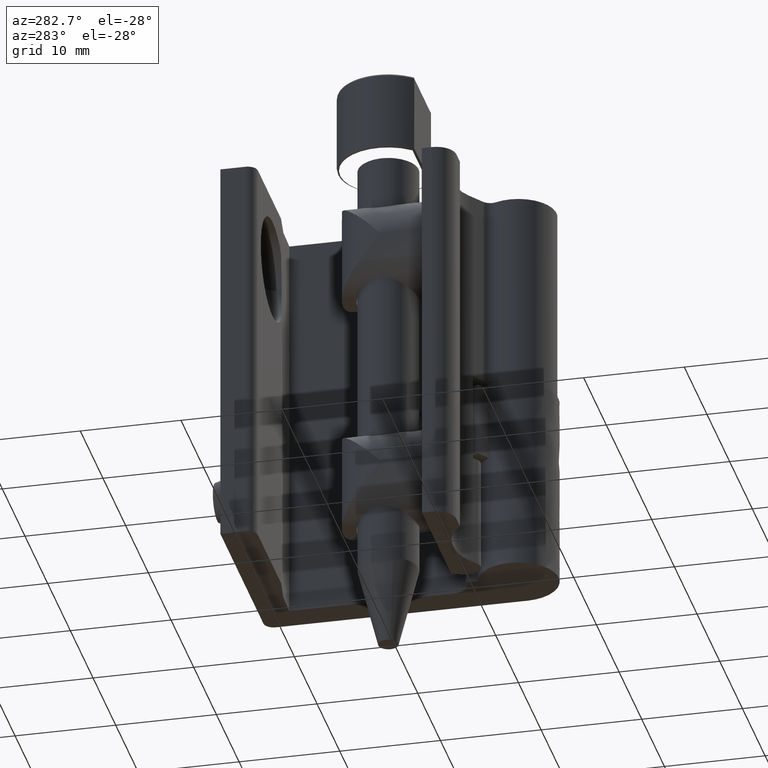
[diagram: clean part render]
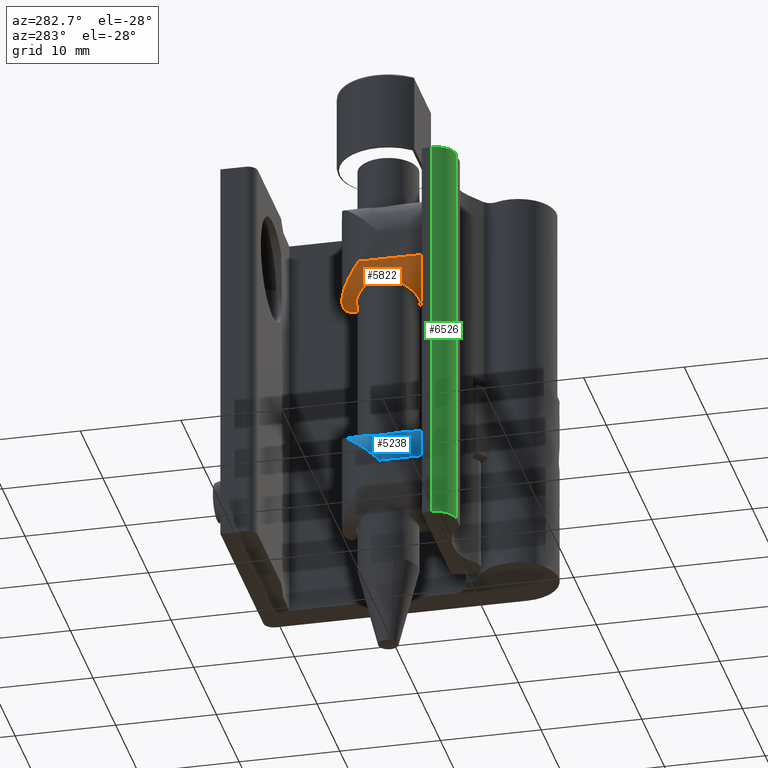
[diagram: same view with three faces highlighted in distinct colors, each labeled with its STEP entity id]
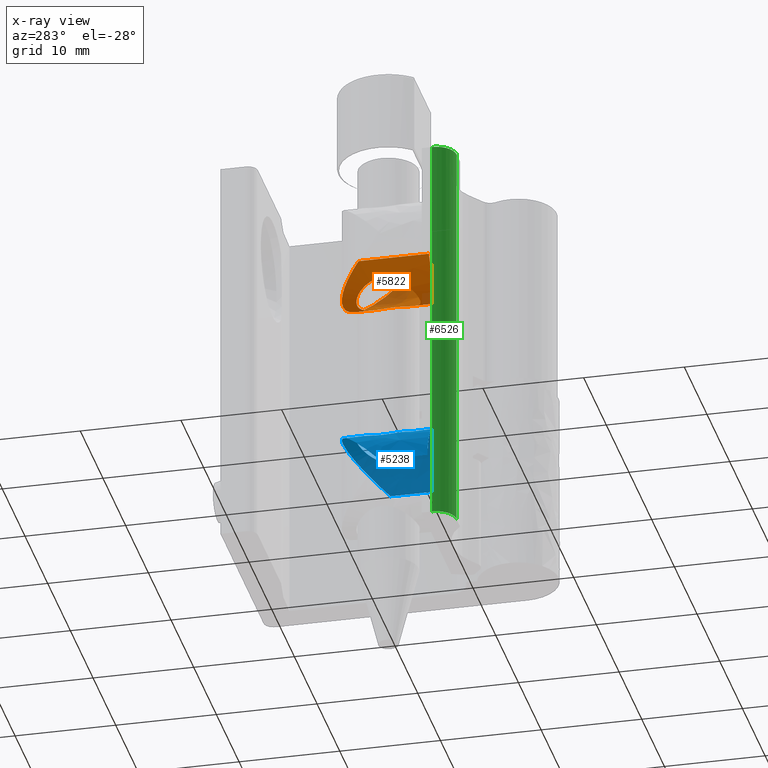
[diagram: x-ray of the same camera — body ghosted, the three highlighted faces saturated]
A machine part, auxiliary view with three faces highlighted in distinct colors.
The next image is the same camera in x-ray (body ghosted, the three faces saturated) — at least one of them is partly hidden behind the body in this view.
Their STEP definitions:

[orange] entity #5822 — the highlighted face is a freeform B-spline surface patch.
#4345=CARTESIAN_POINT('',(-6.288955894594649,13.172816434466119,28.043351318911210));
#4346=VERTEX_POINT('',#4345);
#4347=CARTESIAN_POINT('',(-10.542853938200860,13.331739638324970,27.963759636058661));
#4348=VERTEX_POINT('',#4347);
#4349=CARTESIAN_POINT('',(-6.288955894594649,13.172816434466119,28.043351318911210));
#4350=CARTESIAN_POINT('',(-6.291486503693895,13.175391386832080,28.042095829929320));
#4351=CARTESIAN_POINT('',(-6.294022083410225,13.177962504480069,28.040840549064669));
#4352=CARTESIAN_POINT('',(-6.366232260020155,13.250932539172050,28.005168226026239));
#4353=CARTESIAN_POINT('',(-6.439901014100267,13.318551398561389,27.970834618477049));
#4354=CARTESIAN_POINT('',(-6.592277857667039,13.445464228955119,27.904572463045611));
#4355=CARTESIAN_POINT('',(-6.671284117087141,13.505094854106391,27.872483291698519));
#4356=CARTESIAN_POINT('',(-6.916991384499979,13.672693143078890,27.780342430378749));
#4357=CARTESIAN_POINT('',(-7.092266948808134,13.769521166903679,27.724373919684730));
#4358=CARTESIAN_POINT('',(-7.327966614911155,13.870344674309059,27.664795033563291));
#4359=CARTESIAN_POINT('',(-7.375900607043074,13.889454864514841,27.653419830499260));
#4360=CARTESIAN_POINT('',(-7.472169647622820,13.925084379172640,27.632093933681290));
#4361=CARTESIAN_POINT('',(-7.520662696622986,13.941673558392740,27.622102039603600));
#4362=CARTESIAN_POINT('',(-7.667219302861189,13.987791330102599,27.594197895427261));
#4363=CARTESIAN_POINT('',(-7.766357938291234,14.013679709143570,27.578355050466620));
#4364=CARTESIAN_POINT('',(-7.967570066028031,14.055654363207850,27.552541121189691));
#4365=CARTESIAN_POINT('',(-8.069643163943296,14.071741704555700,27.542568835284559));
#4366=CARTESIAN_POINT('',(-8.225064161064960,14.088216074325350,27.532338331924130));
#4367=CARTESIAN_POINT('',(-8.277257051293145,14.092428845304489,27.529716902902010));
#4368=CARTESIAN_POINT('',(-8.382442079858437,14.098211570947059,27.526116810898628));
#4369=CARTESIAN_POINT('',(-8.435328498667634,14.099763880692860,27.525149166128681));
#4370=CARTESIAN_POINT('',(-8.697813171038998,14.100796373560970,27.524505526683331));
#4371=CARTESIAN_POINT('',(-8.904641652767200,14.080493762825320,27.537236848108929));
#4372=CARTESIAN_POINT('',(-9.159386408925753,14.029504587898760,27.568626429669539));
#4373=CARTESIAN_POINT('',(-9.210144257562403,14.018013624905681,27.575681176927819));
#4374=CARTESIAN_POINT('',(-9.311275508615585,13.992414831878479,27.591328392328698));
#4375=CARTESIAN_POINT('',(-9.361459382768686,13.978347783912570,27.599895622945041));
#4376=CARTESIAN_POINT('',(-9.509698532998522,13.932780015240841,27.627502802703759));
#4377=CARTESIAN_POINT('',(-9.605944283153249,13.897800052704900,27.648520553884119));
#4378=CARTESIAN_POINT('',(-9.793598851403544,13.819036361076980,27.695150934753109));
#4379=CARTESIAN_POINT('',(-9.885006755002323,13.775251566055211,27.720765451390161));
#4380=CARTESIAN_POINT('',(-10.063156639082219,13.678957290130390,27.776031955937441));
#4381=CARTESIAN_POINT('',(-10.150099026206650,13.626258678488080,27.805783756034170));
#4382=CARTESIAN_POINT('',(-10.342167598506400,13.496743270733830,27.877167272385091));
#4383=CARTESIAN_POINT('',(-10.445280991760191,13.417252780391010,27.919813458417000));
#4384=CARTESIAN_POINT('',(-10.542853938200860,13.331739638324970,27.963759636058661));
#4385=B_SPLINE_CURVE_WITH_KNOTS('',3,(#4349,#4350,#4351,#4352,#4353,#4354,#4355,#4356,#4357,#4358,#4359,#4360,#4361,#4362,#4363,#4364,#4365,#4366,#4367,#4368,#4369,#4370,#4371,#4372,#4373,#4374,#4375,#4376,#4377,#4378,#4379,#4380,#4381,#4382,#4383,#4384),.UNSPECIFIED.,.F.,.U.,(4,2,2,2,2,2,2,2,2,2,2,2,2,2,2,2,2,4),(0.624430222707495,0.624999999999993,0.640624999999993,0.656249999999994,0.687499999999994,0.695312499999994,0.703124999999994,0.718749999999994,0.734374999999995,0.742187499999995,0.749999999999995,0.781249999999996,0.789062499999996,0.796874999999996,0.812499999999997,0.828124999999997,0.843749999999998,0.864248771825508),.UNSPECIFIED.);
#4386=EDGE_CURVE('',#4346,#4348,#4385,.T.);
#4471=CARTESIAN_POINT('',(-11.600035681876280,11.000000522471961,28.608905792773861));
#4472=VERTEX_POINT('',#4471);
#4473=CARTESIAN_POINT('',(-10.542853938200860,13.331739638324970,27.963759636058661));
#4474=CARTESIAN_POINT('',(-10.594029651198460,13.286890029485720,27.986808411056991));
#4475=CARTESIAN_POINT('',(-10.643681292482610,13.240383703639131,28.010214788186971));
#4476=CARTESIAN_POINT('',(-10.761873110173051,13.122214717702899,28.068218540049841));
#4477=CARTESIAN_POINT('',(-10.829018830092981,13.048305780482890,28.103237798333019));
#4478=CARTESIAN_POINT('',(-10.955045331315301,12.895430170215031,28.172343024780329));
#4479=CARTESIAN_POINT('',(-11.014079029630770,12.816379379601630,28.206485511355091));
#4480=CARTESIAN_POINT('',(-11.179658440819090,12.571136732263261,28.306340876500151));
#4481=CARTESIAN_POINT('',(-11.274845470816549,12.396993924368090,28.369583626700159));
#4482=CARTESIAN_POINT('',(-11.373909893236529,12.163347599229320,28.438966773066710));
#4483=CARTESIAN_POINT('',(-11.392738516654980,12.115720749669389,28.452370886208492));
#4484=CARTESIAN_POINT('',(-11.427904859398810,12.019877054169029,28.477734716089820));
#4485=CARTESIAN_POINT('',(-11.444298132597391,11.971540667117059,28.489732582795110));
#4486=CARTESIAN_POINT('',(-11.489912010599779,11.825254887435291,28.523488173882150));
#4487=CARTESIAN_POINT('',(-11.515577979315101,11.726031905706810,28.543009405714599));
#4488=CARTESIAN_POINT('',(-11.557176943665571,11.523940014177420,28.575058347010060));
#4489=CARTESIAN_POINT('',(-11.573112002411150,11.421071560386720,28.587585802590510));
#4490=CARTESIAN_POINT('',(-11.589241802518179,11.263772266440860,28.600326309501330));
#4491=CARTESIAN_POINT('',(-11.593286733917060,11.211131391078361,28.603538194852739));
#4492=CARTESIAN_POINT('',(-11.598681063850229,11.105728676120050,28.607826033688479));
#4493=CARTESIAN_POINT('',(-11.600035443157759,11.052741514502040,28.608905895592180));
#4494=CARTESIAN_POINT('',(-11.600035681876280,11.000000522471961,28.608905792773861));
#4495=B_SPLINE_CURVE_WITH_KNOTS('',3,(#4473,#4474,#4475,#4476,#4477,#4478,#4479,#4480,#4481,#4482,#4483,#4484,#4485,#4486,#4487,#4488,#4489,#4490,#4491,#4492,#4493,#4494),.UNSPECIFIED.,.F.,.U.,(4,2,2,2,2,2,2,2,2,2,4),(0.864248771825508,0.874999999999998,0.890624999999999,0.906249999999999,0.937500000000000,0.945312500000000,0.953125000000000,0.968750000000000,0.984375000000000,0.992187500000000,1.0),.UNSPECIFIED.);
#4496=EDGE_CURVE('',#4348,#4472,#4495,.T.);
#4608=CARTESIAN_POINT('',(-5.400063736851323,10.986720570402630,28.608883131212021));
#4609=VERTEX_POINT('',#4608);
#4610=CARTESIAN_POINT('',(-5.400063736851323,10.986720570402630,28.608883131212021));
#4611=CARTESIAN_POINT('',(-5.399161724096766,11.197291475770600,28.609601966484831));
#4612=CARTESIAN_POINT('',(-5.419498399970672,11.403841431930831,28.593144602278109));
#4613=CARTESIAN_POINT('',(-5.480229563872202,11.708146955071010,28.546263160627682));
#4614=CARTESIAN_POINT('',(-5.505750240691176,11.809176385204660,28.526807443176718));
#4615=CARTESIAN_POINT('',(-5.565752133572087,12.005232217388160,28.482291408986331));
#4616=CARTESIAN_POINT('',(-5.600251695718555,12.100644654512720,28.457215057665969));
#4617=CARTESIAN_POINT('',(-5.677890933865077,12.286726439579450,28.402640598868850));
#4618=CARTESIAN_POINT('',(-5.721032000224263,12.377394782194120,28.373140923660529));
#4619=CARTESIAN_POINT('',(-5.792226828981396,12.510063770775080,28.326371112792380));
#4620=CARTESIAN_POINT('',(-5.817083816561604,12.553791070050600,28.310334705981589));
#4621=CARTESIAN_POINT('',(-5.868534070612345,12.639419642603659,28.277829456221330));
#4622=CARTESIAN_POINT('',(-5.895169744153236,12.681407648759190,28.261331798140830));
#4623=CARTESIAN_POINT('',(-6.030840341664320,12.884395465403140,28.179160683410760));
#4624=CARTESIAN_POINT('',(-6.152692215042325,13.034165102024710,28.110954302671150));
#4625=CARTESIAN_POINT('',(-6.288955894594649,13.172816434466119,28.043351318911210));
#4626=B_SPLINE_CURVE_WITH_KNOTS('',3,(#4610,#4611,#4612,#4613,#4614,#4615,#4616,#4617,#4618,#4619,#4620,#4621,#4622,#4623,#4624,#4625),.UNSPECIFIED.,.F.,.U.,(4,2,2,2,2,2,2,4),(0.499999999999992,0.531249999999992,0.546874999999992,0.562499999999993,0.578124999999993,0.585937499999993,0.593749999999993,0.624430222707495),.UNSPECIFIED.);
#4627=EDGE_CURVE('',#4609,#4346,#4626,.T.);
#4629=CARTESIAN_POINT('',(-11.600035681876280,11.000000522471961,28.608905792773861));
#4630=CARTESIAN_POINT('',(-11.600035681876280,10.789035676164220,28.608905792773861));
#4631=CARTESIAN_POINT('',(-11.578747615944391,10.583228243918610,28.591698718962530));
#4632=CARTESIAN_POINT('',(-11.517343547266231,10.281394335534509,28.544354009036979));
#4633=CARTESIAN_POINT('',(-11.491880909414400,10.181812121601761,28.524964569133370));
#4634=CARTESIAN_POINT('',(-11.431096158441880,9.985380085425078,28.479934215765141));
#4635=CARTESIAN_POINT('',(-11.396282435969329,9.890109550550799,28.454677138498170));
#4636=CARTESIAN_POINT('',(-11.318300449599480,9.704822171989635,28.399967576361309));
#4637=CARTESIAN_POINT('',(-11.275129823725640,9.614807133115807,28.370512896237290));
#4638=CARTESIAN_POINT('',(-11.180549288731280,9.439630354088781,28.308501713568610));
#4639=CARTESIAN_POINT('',(-11.129009706501529,9.354279037287702,28.275865547031572));
#4640=CARTESIAN_POINT('',(-10.962560872418250,9.106436761794477,28.175257836463889));
#4641=CARTESIAN_POINT('',(-10.837939562117301,8.954800828885013,28.105837088385439));
#4642=CARTESIAN_POINT('',(-10.630157170728340,8.745617717459288,28.003428258725151));
#4643=CARTESIAN_POINT('',(-10.557390697671130,8.678970517174530,27.969563271615250));
#4644=CARTESIAN_POINT('',(-10.442647081006131,8.583653323042599,27.919758530682181));
#4645=CARTESIAN_POINT('',(-10.403392869666019,8.552611248916106,27.903295975614320));
#4646=CARTESIAN_POINT('',(-10.323760883192829,8.492709302498762,27.871125104961301));
#4647=CARTESIAN_POINT('',(-10.283301215844791,8.463776079314251,27.855379202576611));
#4648=CARTESIAN_POINT('',(-10.077764184539131,8.324128439688590,27.778538263207150));
#4649=CARTESIAN_POINT('',(-9.903073593193421,8.228288430041074,27.723087045009191));
#4650=CARTESIAN_POINT('',(-9.624063841917353,8.109189714695054,27.652694272164400));
#4651=CARTESIAN_POINT('',(-9.528120960755423,8.073605970932572,27.631346760825860));
#4652=CARTESIAN_POINT('',(-9.330349953732696,8.011468659001151,27.593746656058460));
#4653=CARTESIAN_POINT('',(-9.230500741864979,7.985531942822179,27.577870388221228));
#4654=CARTESIAN_POINT('',(-8.928083174092400,7.922798420359579,27.539284707941249));
#4655=CARTESIAN_POINT('',(-8.722670888634287,7.900918829746481,27.525573637292279));
#4656=CARTESIAN_POINT('',(-8.460850760844457,7.899805721090432,27.524880045772569));
#4657=CARTESIAN_POINT('',(-8.408036133924838,7.900920057605409,27.525574722857861));
#4658=CARTESIAN_POINT('',(-8.303033314305631,7.905819895448415,27.528625856745361));
#4659=CARTESIAN_POINT('',(-8.250856055539442,7.909591797465757,27.530973820986521));
#4660=CARTESIAN_POINT('',(-8.095270198634315,7.924772507789892,27.540405733610701));
#4661=CARTESIAN_POINT('',(-7.992805453416286,7.940036293103137,27.549875068166301));
#4662=CARTESIAN_POINT('',(-7.790307070830989,7.980571939562876,27.574829464873741));
#4663=CARTESIAN_POINT('',(-7.690273610730140,8.005844215974799,27.590315478619608));
#4664=CARTESIAN_POINT('',(-7.542030008548373,8.051289281821971,27.617852538864529));
#4665=CARTESIAN_POINT('',(-7.492824461825126,8.067736456511916,27.627773898987609));
#4666=CARTESIAN_POINT('',(-7.396104794907736,8.102763281785476,27.648773524095230));
#4667=CARTESIAN_POINT('',(-7.348466485607342,8.121375643808667,27.659871812848671));
#4668=CARTESIAN_POINT('',(-7.113741030715202,8.219776203620624,27.718134854876759));
#4669=CARTESIAN_POINT('',(-6.936949458830374,8.315391646045690,27.773585768587090));
#4670=CARTESIAN_POINT('',(-6.728553889816984,8.455520859369566,27.850866533434861));
#4671=CARTESIAN_POINT('',(-6.687548901590032,8.484571611944462,27.866711405285152));
#4672=CARTESIAN_POINT('',(-6.607544065036977,8.544197915580897,27.898810247217568));
#4673=CARTESIAN_POINT('',(-6.568445077105654,8.574838536354541,27.915100358337991));
#4674=CARTESIAN_POINT('',(-6.453762293621300,8.669212871505689,27.964549468367860));
#4675=CARTESIAN_POINT('',(-6.380785291335950,8.735390854618677,27.998288189288541));
#4676=CARTESIAN_POINT('',(-6.241467822899218,8.874312293627288,28.066547289532441));
#4677=CARTESIAN_POINT('',(-6.175127658682381,8.947054909427079,28.101070011356171));
#4678=CARTESIAN_POINT('',(-6.048999496828983,9.099420433343473,28.170080342186498));
#4679=CARTESIAN_POINT('',(-5.989131625072889,9.179245766866126,28.204633790166191));
#4680=CARTESIAN_POINT('',(-5.822674410748782,9.424920087499553,28.304868055946699));
#4681=CARTESIAN_POINT('',(-5.727817707149025,9.598233768662873,28.367852597305930));
#4682=CARTESIAN_POINT('',(-5.609787287411999,9.874610983622254,28.450384593655119));
#4683=CARTESIAN_POINT('',(-5.574523463088123,9.969495471694721,28.475888731413040));
#4684=CARTESIAN_POINT('',(-5.528156086392680,10.116499503623730,28.510148228845999));
#4685=CARTESIAN_POINT('',(-5.513836731360781,10.166171748566409,28.520867110891562));
#4686=CARTESIAN_POINT('',(-5.487787723705481,10.265822856709910,28.540549908047460));
#4687=CARTESIAN_POINT('',(-5.476009997081291,10.315949670106040,28.549549191267690));
#4688=CARTESIAN_POINT('',(-5.444417840600036,10.467252832005890,28.573866732729009));
#4689=CARTESIAN_POINT('',(-5.428333554670945,10.569350367347591,28.586503088415309));
#4690=CARTESIAN_POINT('',(-5.411868980842748,10.724443602437610,28.599501079120131));
#4691=CARTESIAN_POINT('',(-5.407660441704296,10.776466217661550,28.602841345519749));
#4692=CARTESIAN_POINT('',(-5.401869342797015,10.881183229497980,28.607443570597649));
#4693=CARTESIAN_POINT('',(-5.400289252698594,10.934077853615291,28.608703467505691));
#4694=CARTESIAN_POINT('',(-5.400063736851323,10.986720570402630,28.608883131212021));
#4695=B_SPLINE_CURVE_WITH_KNOTS('',3,(#4629,#4630,#4631,#4632,#4633,#4634,#4635,#4636,#4637,#4638,#4639,#4640,#4641,#4642,#4643,#4644,#4645,#4646,#4647,#4648,#4649,#4650,#4651,#4652,#4653,#4654,#4655,#4656,#4657,#4658,#4659,#4660,#4661,#4662,#4663,#4664,#4665,#4666,#4667,#4668,#4669,#4670,#4671,#4672,#4673,#4674,#4675,#4676,#4677,#4678,#4679,#4680,#4681,#4682,#4683,#4684,#4685,#4686,#4687,#4688,#4689,#4690,#4691,#4692,#4693,#4694),.UNSPECIFIED.,.F.,.U.,(4,2,2,2,2,2,2,2,2,2,2,2,2,2,2,2,2,2,2,2,2,2,2,2,2,2,2,2,2,2,2,2,4),(0.0,0.031249999999999,0.046874999999999,0.062499999999998,0.078124999999998,0.093749999999997,0.124999999999997,0.140624999999996,0.148437499999996,0.156249999999995,0.187499999999995,0.203124999999995,0.218749999999994,0.249999999999994,0.257812499999994,0.265624999999994,0.281249999999994,0.296874999999994,0.304687499999994,0.312499999999993,0.343749999999993,0.351562499999993,0.359374999999993,0.374999999999993,0.390624999999992,0.406249999999992,0.437499999999992,0.453124999999992,0.460937499999992,0.468749999999992,0.484374999999992,0.492187499999992,0.499999999999992),.UNSPECIFIED.);
#4696=EDGE_CURVE('',#4472,#4609,#4695,.T.);
#5473=CARTESIAN_POINT('',(-12.830286267997570,12.982655480053470,30.050601282488511));
#5474=VERTEX_POINT('',#5473);
#5561=CARTESIAN_POINT('',(-12.830286050724130,6.000000284984679,30.050602146652071));
#5562=VERTEX_POINT('',#5561);
#5563=CARTESIAN_POINT('',(-12.830286050724130,6.000000284984679,30.050602146652071));
#5564=CARTESIAN_POINT('',(-12.830286267997570,12.982655480053470,30.050601282488511));
#5565=QUASI_UNIFORM_CURVE('',1,(#5563,#5564),.UNSPECIFIED.,.F.,.U.);
#5566=EDGE_CURVE('',#5562,#5474,#5565,.T.);
#5585=CARTESIAN_POINT('',(-3.716703919527724,6.000000284984680,33.867614963895278));
#5586=VERTEX_POINT('',#5585);
#5600=CARTESIAN_POINT('',(-3.716705801211323,11.904908565743080,33.867621744854922));
#5601=VERTEX_POINT('',#5600);
#5602=CARTESIAN_POINT('',(-3.716703919527724,6.000000284984680,33.867614963895278));
#5603=CARTESIAN_POINT('',(-3.716705801211323,11.904908565743080,33.867621744854922));
#5604=QUASI_UNIFORM_CURVE('',1,(#5602,#5603),.UNSPECIFIED.,.F.,.U.);
#5605=EDGE_CURVE('',#5586,#5601,#5604,.T.);
#5651=CARTESIAN_POINT('',(-3.716706417854991,5.762500273704296,33.867623701984201));
#5652=CARTESIAN_POINT('',(-2.349084259539247,5.762500273704296,29.084294632888700));
#5653=CARTESIAN_POINT('',(-7.132413328634753,5.762500273704296,27.716672474572949));
#5654=CARTESIAN_POINT('',(-10.900671560114505,5.762500273704295,26.639273579120847));
#5655=CARTESIAN_POINT('',(-12.830285033256041,5.762500273704296,30.050600347887944));
#5656=CARTESIAN_POINT('',(-3.716706417854991,15.743438247762390,33.867623701984201));
#5657=CARTESIAN_POINT('',(-2.349084259539247,15.743438247762398,29.084294632888700));
#5658=CARTESIAN_POINT('',(-7.132413328634753,15.743438247762390,27.716672474572949));
#5659=CARTESIAN_POINT('',(-10.900671560114505,15.743438247762397,26.639273579120847));
#5660=CARTESIAN_POINT('',(-12.830285033256041,15.743438247762391,30.050600347887944));
#5668=(BOUNDED_SURFACE()B_SPLINE_SURFACE(2,1,((#5651,#5656),(#5652,#5657),(#5653,#5658),(#5654,#5659),(#5655,#5660)),.UNSPECIFIED.,.F.,.F.,.U.)B_SPLINE_SURFACE_WITH_KNOTS((3,2,3),(2,2),(0.0,8.242850282736798,15.166844520235710),(0.0,9.980937974058096),.UNSPECIFIED.)GEOMETRIC_REPRESENTATION_ITEM()RATIONAL_B_SPLINE_SURFACE(((1.0,1.0),(0.707106781186548,0.707106781186548),(1.0,1.0),(0.753969696196700,0.753969696196700),(0.921270302782944,0.921270302782944)))REPRESENTATION_ITEM('')SURFACE());
#5669=CARTESIAN_POINT('',(-8.482373674173397,15.499965528135020,27.525032658183871));
#5670=VERTEX_POINT('',#5669);
#5671=CARTESIAN_POINT('',(-8.482373674173397,15.499965528135020,27.525032658183871));
#5672=CARTESIAN_POINT('',(-8.531552200834598,15.500150739561880,27.524858061043261));
#5673=CARTESIAN_POINT('',(-8.581005899934075,15.499603075779509,27.525417304572301));
#5674=CARTESIAN_POINT('',(-8.679299794974023,15.497056254977361,27.527988973773500));
#5675=CARTESIAN_POINT('',(-8.826162829131560,15.491066262840450,27.534018840270999));
#5676=CARTESIAN_POINT('',(-8.971328214243005,15.478701418089599,27.546431373533181));
#5677=CARTESIAN_POINT('',(-9.259464974862066,15.445733312771230,27.579505600668870));
#5678=CARTESIAN_POINT('',(-9.448638081507031,15.412797312556600,27.612526556831831));
#5679=CARTESIAN_POINT('',(-9.728153076515698,15.347456693023640,27.678019238301559));
#5680=CARTESIAN_POINT('',(-9.820786339598328,15.322940648432990,27.702590252835400));
#5681=CARTESIAN_POINT('',(-10.001809234128761,15.269507144513200,27.756140923031442));
#5682=CARTESIAN_POINT('',(-10.090556987421360,15.240518267428870,27.785192170344381));
#5683=CARTESIAN_POINT('',(-10.351820130419579,15.147136670507580,27.878773171420079));
#5684=CARTESIAN_POINT('',(-10.519373674171449,15.076352473824670,27.949706558014789));
#5685=CARTESIAN_POINT('',(-10.761609193076660,14.958464967711080,28.067848165922381));
#5686=CARTESIAN_POINT('',(-10.841062406153309,14.917074991018641,28.109328234203151));
#5687=CARTESIAN_POINT('',(-10.995335362236940,14.831460373642880,28.195132495440419));
#5688=CARTESIAN_POINT('',(-11.070284434686110,14.787190624933380,28.239501884997580));
#5689=CARTESIAN_POINT('',(-11.289047345829291,14.650315034575140,28.376692713613480));
#5690=CARTESIAN_POINT('',(-11.426800939111130,14.553658860180420,28.473580598502291));
#5691=CARTESIAN_POINT('',(-11.687939785698600,14.350752968997140,28.677007011183811));
#5692=CARTESIAN_POINT('',(-11.811315918942631,14.244497074695801,28.783551576614240));
#5693=CARTESIAN_POINT('',(-11.986437853980730,14.078484809840189,28.950056112966081));
#5694=CARTESIAN_POINT('',(-12.043265530512690,14.021917701019390,29.006797664876739));
#5695=CARTESIAN_POINT('',(-12.153124269999880,13.907234189388790,29.121851995427569));
#5696=CARTESIAN_POINT('',(-12.206049808012329,13.849242497955739,29.180039621013531));
#5697=CARTESIAN_POINT('',(-12.461280230564521,13.556242849011751,29.474081815606461));
#5698=CARTESIAN_POINT('',(-12.635726810347350,13.312209914211820,29.719129147831030));
#5699=CARTESIAN_POINT('',(-12.800494476067300,13.034457955743470,29.998486028165189));
#5700=CARTESIAN_POINT('',(-12.815521167586580,13.008598122418929,30.024499532527269));
#5701=CARTESIAN_POINT('',(-12.830286267997570,12.982655480053470,30.050601282488511));
#5702=B_SPLINE_CURVE_WITH_KNOTS('',3,(#5671,#5672,#5673,#5674,#5675,#5676,#5677,#5678,#5679,#5680,#5681,#5682,#5683,#5684,#5685,#5686,#5687,#5688,#5689,#5690,#5691,#5692,#5693,#5694,#5695,#5696,#5697,#5698,#5699,#5700,#5701),.UNSPECIFIED.,.F.,.U.,(4,2,1,2,2,2,2,2,2,2,2,2,2,2,2,4),(0.500000000000078,0.503906250000078,0.507812500000077,0.515625000000077,0.531250000000075,0.539062500000075,0.546875000000074,0.562500000000072,0.570312500000071,0.578125000000071,0.593750000000069,0.609375000000068,0.617187500000067,0.625000000000067,0.656250000000064,0.659446715870012),.UNSPECIFIED.);
#5703=EDGE_CURVE('',#5670,#5474,#5702,.T.);
#5704=ORIENTED_EDGE('',*,*,#5703,.F.);
#5705=CARTESIAN_POINT('',(-3.716705801211323,11.904908565743080,33.867621744854922));
#5706=CARTESIAN_POINT('',(-3.712114000800052,11.889058524950361,33.851561462730587));
#5707=CARTESIAN_POINT('',(-3.707605148642137,11.873200107596009,33.835485254357131));
#5708=CARTESIAN_POINT('',(-3.665495847255397,11.722255282925371,33.682390066798483));
#5709=CARTESIAN_POINT('',(-3.633782913720062,11.586468886824820,33.544192948513832));
#5710=CARTESIAN_POINT('',(-3.595087832474343,11.383362272746410,33.334953669085159));
#5711=CARTESIAN_POINT('',(-3.583663408142714,11.315737860202089,33.264860110192792));
#5712=CARTESIAN_POINT('',(-3.563739354298165,11.181182108670081,33.123462236458813));
#5713=CARTESIAN_POINT('',(-3.555247177534760,11.114242269040870,33.052269099617050));
#5714=CARTESIAN_POINT('',(-3.544710480623662,11.015724033065680,32.943516300874947));
#5715=CARTESIAN_POINT('',(-3.541563394677319,10.983184796139760,32.906906362095349));
#5716=CARTESIAN_POINT('',(-3.536017833488777,10.919561864318821,32.832485540709989));
#5717=CARTESIAN_POINT('',(-3.533619495965382,10.888439100460641,32.794736065546203));
#5718=CARTESIAN_POINT('',(-3.530602791901123,10.844374980241261,32.736107461845393));
#5719=CARTESIAN_POINT('',(-3.529694152521670,10.830134773160591,32.716222118444811));
#5720=CARTESIAN_POINT('',(-3.528081527378093,10.803212380105990,32.675267237310663));
#5721=CARTESIAN_POINT('',(-3.527373489295863,10.790441260378371,32.654073767589693));
#5722=CARTESIAN_POINT('',(-3.526208003861191,10.768183458104030,32.610208984197797));
#5723=CARTESIAN_POINT('',(-3.525750763214934,10.758716210831450,32.587630566344991));
#5724=CARTESIAN_POINT('',(-3.525293535602299,10.748967934801000,32.552033925899487));
#5725=CARTESIAN_POINT('',(-3.525179457623261,10.746469581490910,32.539766215593389));
#5726=CARTESIAN_POINT('',(-3.525044045883991,10.743489959552800,32.515294030915364));
#5727=CARTESIAN_POINT('',(-3.525021411686632,10.742983652640181,32.503045077067213));
#5728=CARTESIAN_POINT('',(-3.525066859262524,10.743990372361001,32.478520763172973));
#5729=CARTESIAN_POINT('',(-3.525135983537004,10.745525516242481,32.466147124766287));
#5730=CARTESIAN_POINT('',(-3.525360381709005,10.750398852485720,32.441874545880133));
#5731=CARTESIAN_POINT('',(-3.525513994157100,10.753697304759241,32.430042257596817));
#5732=CARTESIAN_POINT('',(-3.526084481435059,10.765582616453740,32.395247607711532));
#5733=CARTESIAN_POINT('',(-3.526614199968678,10.776195191947700,32.372842381089320));
#5734=CARTESIAN_POINT('',(-3.528548008605850,10.811917120717171,32.308178862474541));
#5735=CARTESIAN_POINT('',(-3.530272124786196,10.840331507484130,32.268543430544973));
#5736=CARTESIAN_POINT('',(-3.534473448429455,10.899770057258159,32.191271455923982));
#5737=CARTESIAN_POINT('',(-3.536956501957302,10.931034716706920,32.153815590754917));
#5738=CARTESIAN_POINT('',(-3.542666615999649,10.994827504778740,32.079892621982452));
#5739=CARTESIAN_POINT('',(-3.545894111092541,11.027391473946601,32.043472019169620));
#5740=CARTESIAN_POINT('',(-3.556656045581028,11.125827217940749,31.935312566141590));
#5741=CARTESIAN_POINT('',(-3.565279050418673,11.192531625289879,31.864516723170240));
#5742=CARTESIAN_POINT('',(-3.585419118184954,11.326473650667040,31.723981024928509));
#5743=CARTESIAN_POINT('',(-3.596936747490469,11.393764939611669,31.654292852692709));
#5744=CARTESIAN_POINT('',(-3.635866879646405,11.595844206442271,31.446247887184040));
#5745=CARTESIAN_POINT('',(-3.667647979787253,11.730826686654380,31.308898548538110));
#5746=CARTESIAN_POINT('',(-3.724361113955164,11.932795827072750,31.104087887192119));
#5747=CARTESIAN_POINT('',(-3.744789668112148,12.000081582197851,31.035999575300309));
#5748=CARTESIAN_POINT('',(-3.788509534375573,12.133788667887000,30.900880627464868));
#5749=CARTESIAN_POINT('',(-3.811821399091961,12.200290600054149,30.833769115160511));
#5750=CARTESIAN_POINT('',(-3.935702771446331,12.530947392234729,30.500391324637690));
#5751=CARTESIAN_POINT('',(-4.058046169456199,12.789550293148290,30.240565342008651));
#5752=CARTESIAN_POINT('',(-4.353686818352557,13.292977537199160,29.735202460628809));
#5753=CARTESIAN_POINT('',(-4.526843550412999,13.537868662487480,29.489654788414231));
#5754=CARTESIAN_POINT('',(-4.782025639263633,13.833395901487410,29.193471722291740));
#5755=CARTESIAN_POINT('',(-4.834838055344075,13.891741453529759,29.135004669153449));
#5756=CARTESIAN_POINT('',(-4.943634465443695,14.006301530775810,29.020218777942279));
#5757=CARTESIAN_POINT('',(-4.999691626569000,14.062601677646200,28.963814134649859));
#5758=CARTESIAN_POINT('',(-5.173024223624344,14.228451207330430,28.797672469651420));
#5759=CARTESIAN_POINT('',(-5.295440152404559,14.334961806853110,28.690995375885329));
#5760=CARTESIAN_POINT('',(-5.555401725817386,14.539029232270311,28.486637415249131));
#5761=CARTESIAN_POINT('',(-5.692935296836466,14.636593261821830,28.388949427723091));
#5762=CARTESIAN_POINT('',(-5.912226387363252,14.775246062580109,28.250136508890549));
#5763=CARTESIAN_POINT('',(-5.987491488167137,14.820150676059280,28.205182913891591));
#5764=CARTESIAN_POINT('',(-6.140710067752828,14.906102443345500,28.119142245994318));
#5765=CARTESIAN_POINT('',(-6.218885583513707,14.947295215667230,28.077909383124162));
#5766=CARTESIAN_POINT('',(-6.458294392400373,15.065314360909650,27.959781893141521));
#5767=CARTESIAN_POINT('',(-6.624385849160949,15.136608977040151,27.888430842587798));
#5768=CARTESIAN_POINT('',(-6.884353865945653,15.231215787466949,27.793760598242521));
#5769=CARTESIAN_POINT('',(-6.972820472547247,15.260689325943920,27.764269478830240));
#5770=CARTESIAN_POINT('',(-7.108436647642271,15.301578116451720,27.723359599704949));
#5771=CARTESIAN_POINT('',(-7.154205135709728,15.314671608047171,27.710259955546821));
#5772=CARTESIAN_POINT('',(-7.245933231466753,15.339492391056821,27.685428722598910));
#5773=CARTESIAN_POINT('',(-7.291975141370507,15.351246785881310,27.673670014507831));
#5774=CARTESIAN_POINT('',(-7.523075117006336,15.406734597849839,27.618165074979348));
#5775=CARTESIAN_POINT('',(-7.710795272741505,15.440649374692979,27.584250667821141));
#5776=CARTESIAN_POINT('',(-8.092088546827732,15.486890464114831,27.538037575990359));
#5777=CARTESIAN_POINT('',(-8.285659537870416,15.499224621460890,27.525731033160181));
#5778=CARTESIAN_POINT('',(-8.482373674173397,15.499965528135020,27.525032658183871));
#5779=B_SPLINE_CURVE_WITH_KNOTS('',3,(#5705,#5706,#5707,#5708,#5709,#5710,#5711,#5712,#5713,#5714,#5715,#5716,#5717,#5718,#5719,#5720,#5721,#5722,#5723,#5724,#5725,#5726,#5727,#5728,#5729,#5730,#5731,#5732,#5733,#5734,#5735,#5736,#5737,#5738,#5739,#5740,#5741,#5742,#5743,#5744,#5745,#5746,#5747,#5748,#5749,#5750,#5751,#5752,#5753,#5754,#5755,#5756,#5757,#5758,#5759,#5760,#5761,#5762,#5763,#5764,#5765,#5766,#5767,#5768,#5769,#5770,#5771,#5772,#5773,#5774,#5775,#5776,#5777,#5778),.UNSPECIFIED.,.F.,.U.,(4,2,2,2,2,2,2,2,2,2,2,2,2,2,2,2,2,2,2,2,2,2,2,2,2,2,2,2,2,2,2,2,2,2,2,2,4),(0.201289678371093,0.203125000000091,0.218750000000098,0.226562500000101,0.234375000000105,0.238281250000107,0.242187500000108,0.244140625000109,0.246093750000110,0.248046875000111,0.249023437500111,0.250000000000111,0.250976562500111,0.251953125000111,0.253906250000111,0.257812500000111,0.261718750000110,0.265625000000110,0.273437500000109,0.281250000000107,0.296875000000105,0.304687500000104,0.312500000000102,0.343750000000098,0.375000000000094,0.382812500000093,0.390625000000092,0.406250000000090,0.421875000000087,0.429687500000086,0.437500000000085,0.453125000000083,0.460937500000082,0.464843750000082,0.468750000000081,0.484375000000080,0.500000000000078),.UNSPECIFIED.);
#5780=EDGE_CURVE('',#5601,#5670,#5779,.T.);
#5781=ORIENTED_EDGE('',*,*,#5780,.F.);
#5782=ORIENTED_EDGE('',*,*,#5605,.F.);
#5783=CARTESIAN_POINT('',(-8.500035486950498,6.000000284984680,27.525001307369930));
#5784=VERTEX_POINT('',#5783);
#5785=CARTESIAN_POINT('',(-3.716703919527725,6.000000284984680,33.867614963895278));
#5786=CARTESIAN_POINT('',(-3.525035250651979,6.000000284984679,33.197239270941118));
#5787=CARTESIAN_POINT('',(-3.525035250651979,6.000000284984680,32.500001543668454));
#5788=CARTESIAN_POINT('',(-3.525035250651979,6.000000284984680,27.525001307369937));
#5789=CARTESIAN_POINT('',(-8.500035486950498,6.000000284984680,27.525001307369930));
#5797=(BOUNDED_CURVE()B_SPLINE_CURVE(2,(#5785,#5786,#5787,#5788,#5789),.UNSPECIFIED.,.F.,.U.)B_SPLINE_CURVE_WITH_KNOTS((3,2,3),(0.703168718001164,0.750000000000000,1.0),.UNSPECIFIED.)CURVE()GEOMETRIC_REPRESENTATION_ITEM()RATIONAL_B_SPLINE_CURVE((0.910823138836658,0.945133740296802,1.0,0.707106781186548,1.0))REPRESENTATION_ITEM(''));
#5798=EDGE_CURVE('',#5586,#5784,#5797,.T.);
#5799=ORIENTED_EDGE('',*,*,#5798,.T.);
#5800=CARTESIAN_POINT('',(-8.500035486950498,6.000000284984680,27.525001307369930));
#5801=CARTESIAN_POINT('',(-11.401683922109985,6.000000284984681,27.525001307369941));
#5802=CARTESIAN_POINT('',(-12.830286050724125,6.000000284984680,30.050602146652075));
#5810=(BOUNDED_CURVE()B_SPLINE_CURVE(2,(#5800,#5801,#5802),.UNSPECIFIED.,.F.,.U.)B_SPLINE_CURVE_WITH_KNOTS((3,3),(0.0,0.166084483917635),.UNSPECIFIED.)CURVE()GEOMETRIC_REPRESENTATION_ITEM()RATIONAL_B_SPLINE_CURVE((1.0,0.805419923641571,0.869373699784292))REPRESENTATION_ITEM(''));
#5811=EDGE_CURVE('',#5784,#5562,#5810,.T.);
#5812=ORIENTED_EDGE('',*,*,#5811,.T.);
#5813=ORIENTED_EDGE('',*,*,#5566,.T.);
#5814=EDGE_LOOP('',(#5704,#5781,#5782,#5799,#5812,#5813));
#5815=FACE_OUTER_BOUND('',#5814,.T.);
#5816=ORIENTED_EDGE('',*,*,#4696,.T.);
#5817=ORIENTED_EDGE('',*,*,#4627,.T.);
#5818=ORIENTED_EDGE('',*,*,#4386,.T.);
#5819=ORIENTED_EDGE('',*,*,#4496,.T.);
#5820=EDGE_LOOP('',(#5816,#5817,#5818,#5819));
#5821=FACE_BOUND('',#5820,.T.);
#5822=ADVANCED_FACE('',(#5815,#5821),#5668,.T.);

[blue] entity #5238 — the highlighted face is a freeform B-spline surface patch.
#4762=CARTESIAN_POINT('',(-6.288959707829875,13.172819283018921,11.956654412529399));
#4763=VERTEX_POINT('',#4762);
#4769=CARTESIAN_POINT('',(-8.511360058887572,14.099980032502691,12.474987703476510));
#4770=VERTEX_POINT('',#4769);
#4771=CARTESIAN_POINT('',(-8.511360058887563,14.099980032502691,12.474987703476510));
#4772=CARTESIAN_POINT('',(-8.301920493906355,14.100745138663051,12.475464451105109));
#4773=CARTESIAN_POINT('',(-8.095355574686677,14.080491936504551,12.462763712711640));
#4774=CARTESIAN_POINT('',(-7.789679314484025,14.019303970367410,12.425095392124190));
#4775=CARTESIAN_POINT('',(-7.688029132081928,13.993542238842030,12.409311586878561));
#4776=CARTESIAN_POINT('',(-7.490782557187231,13.932926510586739,12.372586897635200));
#4777=CARTESIAN_POINT('',(-7.394677794989120,13.898020215863401,12.351612487182599));
#4778=CARTESIAN_POINT('',(-7.207203787981440,13.819383428109930,12.305054163891811));
#4779=CARTESIAN_POINT('',(-7.115835361469144,13.775652017091980,12.279468424670270));
#4780=CARTESIAN_POINT('',(-6.982218296086654,13.703478778952940,12.238041379655961));
#4781=CARTESIAN_POINT('',(-6.938148307526927,13.678257629408030,12.223687498488401));
#4782=CARTESIAN_POINT('',(-6.851720185544447,13.625949752607980,12.194227496701110));
#4783=CARTESIAN_POINT('',(-6.809393522961585,13.598891061476881,12.179136455143009));
#4784=CARTESIAN_POINT('',(-6.602014492005107,13.459174107382390,12.102115539023391));
#4785=CARTESIAN_POINT('',(-6.449584950312336,13.333419603049450,12.035485031891190));
#4786=CARTESIAN_POINT('',(-6.302628776326498,13.186664513128941,11.963417182248691));
#4787=CARTESIAN_POINT('',(-6.295779995947172,13.179759816684170,11.960038579060170));
#4788=CARTESIAN_POINT('',(-6.288959707829875,13.172819283018921,11.956654412529399));
#4789=B_SPLINE_CURVE_WITH_KNOTS('',3,(#4771,#4772,#4773,#4774,#4775,#4776,#4777,#4778,#4779,#4780,#4781,#4782,#4783,#4784,#4785,#4786,#4787,#4788),.UNSPECIFIED.,.F.,.U.,(4,2,2,2,2,2,2,2,4),(0.500000000000001,0.531250000000000,0.546875000000000,0.562500000000000,0.578125000000000,0.585937500000000,0.593750000000000,0.624999999999999,0.626534129905022),.UNSPECIFIED.);
#4790=EDGE_CURVE('',#4770,#4763,#4789,.T.);
#4792=CARTESIAN_POINT('',(-10.542840965803840,13.331726817831200,12.036250307809850));
#4793=VERTEX_POINT('',#4792);
#4794=CARTESIAN_POINT('',(-10.542840965803840,13.331726817831200,12.036250307809850));
#4795=CARTESIAN_POINT('',(-10.522667310070810,13.349400930122879,12.045336148916300));
#4796=CARTESIAN_POINT('',(-10.502285056098019,13.366794732951361,12.054352995031239));
#4797=CARTESIAN_POINT('',(-10.405615151634070,13.447152921222090,12.096332917305290));
#4798=CARTESIAN_POINT('',(-10.326692618480070,13.506618114317570,12.128346811570140));
#4799=CARTESIAN_POINT('',(-10.081129600180009,13.673831087627869,12.220310526001510));
#4800=CARTESIAN_POINT('',(-9.905812324152526,13.770552011479079,12.276228384112990));
#4801=CARTESIAN_POINT('',(-9.528105792496991,13.931763731891660,12.371512866447210));
#4802=CARTESIAN_POINT('',(-9.332988483423018,13.993052341365930,12.408961131170541));
#4803=CARTESIAN_POINT('',(-9.031430733569760,14.055841236498891,12.447577162235550));
#4804=CARTESIAN_POINT('',(-8.929379453138683,14.071894369446870,12.457528396016730));
#4805=CARTESIAN_POINT('',(-8.722044913404197,14.093797520167540,12.471130239982751));
#4806=CARTESIAN_POINT('',(-8.616079841378166,14.099597479422521,12.474749329662220));
#4807=CARTESIAN_POINT('',(-8.511360058887563,14.099980032502691,12.474987703476510));
#4808=B_SPLINE_CURVE_WITH_KNOTS('',3,(#4794,#4795,#4796,#4797,#4798,#4799,#4800,#4801,#4802,#4803,#4804,#4805,#4806,#4807),.UNSPECIFIED.,.F.,.U.,(4,2,2,2,2,2,4),(0.386396052024819,0.390625000000003,0.406250000000002,0.437500000000002,0.468750000000001,0.484375000000001,0.500000000000001),.UNSPECIFIED.);
#4809=EDGE_CURVE('',#4793,#4770,#4808,.T.);
#4873=CARTESIAN_POINT('',(-8.500035486950500,7.900000327546187,12.475000592530741));
#4874=VERTEX_POINT('',#4873);
#4875=CARTESIAN_POINT('',(-8.500035486950500,7.900000327546187,12.475000592530741));
#4876=CARTESIAN_POINT('',(-8.710831644580651,7.900000327546191,12.475000592530741));
#4877=CARTESIAN_POINT('',(-8.917118491122185,7.921269118626871,12.461669286239109));
#4878=CARTESIAN_POINT('',(-9.220277241027961,7.983066806853392,12.423642456334781));
#4879=CARTESIAN_POINT('',(-9.320277399531879,8.008690017554951,12.407949720735370));
#4880=CARTESIAN_POINT('',(-9.518170138256300,8.070130702191129,12.370746253062849));
#4881=CARTESIAN_POINT('',(-9.614405743177549,8.105440562304988,12.349545425762290));
#4882=CARTESIAN_POINT('',(-9.894774229954336,8.224051326790260,12.279378514813200));
#4883=CARTESIAN_POINT('',(-10.071033208136621,8.320012715517573,12.223783484074049));
#4884=CARTESIAN_POINT('',(-10.320627799677910,8.488917756294823,12.130762103928740));
#4885=CARTESIAN_POINT('',(-10.400297413441940,8.548720215312576,12.098534572000320));
#4886=CARTESIAN_POINT('',(-10.552591497318669,8.674751211571751,12.032607348589320));
#4887=CARTESIAN_POINT('',(-10.625302991019581,8.741040102558143,11.998872405717730));
#4888=CARTESIAN_POINT('',(-10.764151560247480,8.880226348361077,11.930619961674809));
#4889=CARTESIAN_POINT('',(-10.830288454736669,8.953122728871708,11.896100110312810));
#4890=CARTESIAN_POINT('',(-10.924611785741170,9.067676125094547,11.844346483113251));
#4891=CARTESIAN_POINT('',(-10.955303463608921,9.106824599708050,11.827061216109200));
#4892=CARTESIAN_POINT('',(-11.014548423156640,9.186252853861666,11.792903944240640));
#4893=CARTESIAN_POINT('',(-11.043140399127870,9.226570346125689,11.776012838403711));
#4894=CARTESIAN_POINT('',(-11.181057621773210,9.431212091882291,11.692774559247351));
#4895=CARTESIAN_POINT('',(-11.275451218637640,9.604566718600152,11.629991803292519));
#4896=CARTESIAN_POINT('',(-11.392883048048491,9.881306689993460,11.547758249282269));
#4897=CARTESIAN_POINT('',(-11.427972961671900,9.976392715545050,11.522346625539100));
#4898=CARTESIAN_POINT('',(-11.489410603924140,10.172820246898070,11.476899119854920));
#4899=CARTESIAN_POINT('',(-11.540918897611840,10.371734798351520,11.437724183359160));
#4900=CARTESIAN_POINT('',(-11.572639169442020,10.575830955562090,11.412789885078290));
#4901=CARTESIAN_POINT('',(-11.588776995237829,10.730965015194350,11.400045257260629));
#4902=CARTESIAN_POINT('',(-11.592878133108140,10.783020437214180,11.396789340211869));
#4903=CARTESIAN_POINT('',(-11.598450728725769,10.887844466796970,11.392359924552091));
#4904=CARTESIAN_POINT('',(-11.599913148975800,10.940727396534839,11.391193727589570));
#4905=CARTESIAN_POINT('',(-11.600488541112581,11.203101232828990,11.390735319768570));
#4906=CARTESIAN_POINT('',(-11.579851109952720,11.409296738972500,11.407432237498330));
#4907=CARTESIAN_POINT('',(-11.518589836875901,11.713462125562049,11.454696576491109));
#4908=CARTESIAN_POINT('',(-11.492912050951460,11.814342600711170,11.474257599016660));
#4909=CARTESIAN_POINT('',(-11.432723209633750,12.009854902548650,11.518877497971401));
#4910=CARTESIAN_POINT('',(-11.398136739795930,12.105057706917130,11.543995620333019));
#4911=CARTESIAN_POINT('',(-11.320307345917630,12.290817664501100,11.598653209223331));
#4912=CARTESIAN_POINT('',(-11.277063224595180,12.381373937211460,11.628194144695200));
#4913=CARTESIAN_POINT('',(-11.205682541471530,12.513933749010111,11.675034641412241));
#4914=CARTESIAN_POINT('',(-11.180817736936730,12.557527809937890,11.691057403046100));
#4915=CARTESIAN_POINT('',(-11.129368559773511,12.642891972081870,11.723524978351611));
#4916=CARTESIAN_POINT('',(-11.102732139104910,12.684761110090530,11.740004301374480));
#4917=CARTESIAN_POINT('',(-10.965036808398279,12.890217432993319,11.823305955542761));
#4918=CARTESIAN_POINT('',(-10.840609319030950,13.042295116048869,11.892783355645919));
#4919=CARTESIAN_POINT('',(-10.666217926174211,13.218132188965919,11.978816444573070));
#4920=CARTESIAN_POINT('',(-10.630295574581890,13.252656398446661,11.996026236247319));
#4921=CARTESIAN_POINT('',(-10.576881929544030,13.301571457590400,12.020805487273799));
#4922=CARTESIAN_POINT('',(-10.559936382218581,13.316749757704260,12.028552799222410));
#4923=CARTESIAN_POINT('',(-10.542840965803840,13.331726817831200,12.036250307809850));
#4924=B_SPLINE_CURVE_WITH_KNOTS('',3,(#4875,#4876,#4877,#4878,#4879,#4880,#4881,#4882,#4883,#4884,#4885,#4886,#4887,#4888,#4889,#4890,#4891,#4892,#4893,#4894,#4895,#4896,#4897,#4898,#4899,#4900,#4901,#4902,#4903,#4904,#4905,#4906,#4907,#4908,#4909,#4910,#4911,#4912,#4913,#4914,#4915,#4916,#4917,#4918,#4919,#4920,#4921,#4922,#4923),.UNSPECIFIED.,.F.,.U.,(4,2,2,2,2,2,2,2,2,2,2,2,1,2,2,2,2,2,2,2,2,2,2,2,4),(0.0,0.031250000000000,0.046875000000000,0.062500000000000,0.093750000000001,0.109375000000001,0.125000000000001,0.140625000000001,0.148437500000001,0.156250000000001,0.187500000000001,0.203125000000001,0.218750000000001,0.234375000000001,0.242187500000001,0.250000000000001,0.281250000000002,0.296875000000003,0.312500000000003,0.328125000000003,0.335937500000004,0.343750000000004,0.375000000000003,0.382812500000003,0.386396052024819),.UNSPECIFIED.);
#4925=EDGE_CURVE('',#4874,#4793,#4924,.T.);
#4927=CARTESIAN_POINT('',(-6.288959707829875,13.172819283018921,11.956654412529399));
#4928=CARTESIAN_POINT('',(-6.226323526204640,13.109070021176640,11.925575744226860));
#4929=CARTESIAN_POINT('',(-6.166153746509285,13.042289475051080,11.894065811296430));
#4930=CARTESIAN_POINT('',(-6.046469988608184,12.897311545711331,11.828486590981370));
#4931=CARTESIAN_POINT('',(-5.987473254068759,12.818443793161730,11.794393273810419));
#4932=CARTESIAN_POINT('',(-5.821900021653617,12.573660719332000,11.694619098693339));
#4933=CARTESIAN_POINT('',(-5.726577081508824,12.399709048171189,11.631339570345400));
#4934=CARTESIAN_POINT('',(-5.627250191158228,12.166055514748640,11.561812758079670));
#4935=CARTESIAN_POINT('',(-5.608432123214612,12.118581260633039,11.548423166410570));
#4936=CARTESIAN_POINT('',(-5.573262392623908,12.023031379914521,11.523070889726140));
#4937=CARTESIAN_POINT('',(-5.556855623186083,11.974829401982770,11.511069838856400));
#4938=CARTESIAN_POINT('',(-5.511171497237260,11.828906213466000,11.477280132299491));
#4939=CARTESIAN_POINT('',(-5.485418933742287,11.729870985820179,11.457703096777619));
#4940=CARTESIAN_POINT('',(-5.443597468225309,11.528025610736099,11.425495303762879));
#4941=CARTESIAN_POINT('',(-5.427509352815629,11.425049906451690,11.412851319305760));
#4942=CARTESIAN_POINT('',(-5.405752345375369,11.215629053810620,11.395668635735911));
#4943=CARTESIAN_POINT('',(-5.394816142207796,11.006854012078220,11.386920251978600));
#4944=CARTESIAN_POINT('',(-5.404790517627626,10.799339459631261,11.394901494888440));
#4945=CARTESIAN_POINT('',(-5.420086241284892,10.644170336718251,11.406991811624410));
#4946=CARTESIAN_POINT('',(-5.426489676737706,10.592525148127301,11.412038139963411));
#4947=CARTESIAN_POINT('',(-5.441931966290051,10.489390215977741,11.424121445819191));
#4948=CARTESIAN_POINT('',(-5.451009290020346,10.437726703663060,11.431187948742350));
#4949=CARTESIAN_POINT('',(-5.502518883801074,10.182518023641791,11.470923440281950));
#4950=CARTESIAN_POINT('',(-5.562949558101433,9.987800298455371,11.516630164497100));
#4951=CARTESIAN_POINT('',(-5.680452255090099,9.707635610091492,11.599130520609860));
#4952=CARTESIAN_POINT('',(-5.724310291726447,9.616030493060483,11.629069114579529));
#4953=CARTESIAN_POINT('',(-5.819388107001347,9.439823280591233,11.691418826742311));
#4954=CARTESIAN_POINT('',(-5.870755073801111,9.354801267727897,11.723939862788390));
#4955=CARTESIAN_POINT('',(-5.981049974668932,9.190440336212047,11.790628799121750));
#4956=CARTESIAN_POINT('',(-6.039978445826672,9.111102771928746,11.824799200840570));
#4957=CARTESIAN_POINT('',(-6.165601409516405,8.957885712843330,11.893880558288600));
#4958=CARTESIAN_POINT('',(-6.232535633634242,8.883817420337620,11.928896272103341));
#4959=CARTESIAN_POINT('',(-6.441830615417729,8.673428987493566,12.031954584479070));
#4960=CARTESIAN_POINT('',(-6.593475951998190,8.547516523020191,12.098541129836690));
#4961=CARTESIAN_POINT('',(-6.840538952362794,8.379698266039039,12.190888160451610));
#4962=CARTESIAN_POINT('',(-6.926183621065923,8.327300919593549,12.220419622149620));
#4963=CARTESIAN_POINT('',(-7.060029003238766,8.254282866008202,12.262268069800420));
#4964=CARTESIAN_POINT('',(-7.105386911006357,8.230968919238791,12.275755760940930));
#4965=CARTESIAN_POINT('',(-7.196843098484922,8.186769236435840,12.301518234427910));
#4966=CARTESIAN_POINT('',(-7.243051897752326,8.165822381872909,12.313828037310920));
#4967=CARTESIAN_POINT('',(-7.476514405909891,8.066817594801846,12.372382660120030));
#4968=CARTESIAN_POINT('',(-7.670952005251837,8.005752936354833,12.409690431450599));
#4969=CARTESIAN_POINT('',(-7.924508715604580,7.953453100367321,12.441863297530929));
#4970=CARTESIAN_POINT('',(-7.975750231091806,7.944207243677946,12.447571408926670));
#4971=CARTESIAN_POINT('',(-8.079337545350271,7.928232166269488,12.457454097106080));
#4972=CARTESIAN_POINT('',(-8.131752502201760,7.921503545768324,12.461628323203589));
#4973=CARTESIAN_POINT('',(-8.236556572156381,7.910768440887964,12.468296170789451));
#4974=CARTESIAN_POINT('',(-8.289080590802531,7.906737173954242,12.470805104785530));
#4975=CARTESIAN_POINT('',(-8.394373628763828,7.901353126717424,12.474157308739199));
#4976=CARTESIAN_POINT('',(-8.447336447542961,7.900000327546187,12.475000592530741));
#4977=CARTESIAN_POINT('',(-8.500035486950500,7.900000327546187,12.475000592530741));
#4978=B_SPLINE_CURVE_WITH_KNOTS('',3,(#4927,#4928,#4929,#4930,#4931,#4932,#4933,#4934,#4935,#4936,#4937,#4938,#4939,#4940,#4941,#4942,#4943,#4944,#4945,#4946,#4947,#4948,#4949,#4950,#4951,#4952,#4953,#4954,#4955,#4956,#4957,#4958,#4959,#4960,#4961,#4962,#4963,#4964,#4965,#4966,#4967,#4968,#4969,#4970,#4971,#4972,#4973,#4974,#4975,#4976,#4977),.UNSPECIFIED.,.F.,.U.,(4,2,2,2,2,2,2,2,1,2,2,2,2,2,2,2,2,2,2,2,2,2,2,2,2,4),(0.626534129905020,0.640624999999999,0.656249999999999,0.687499999999999,0.695312499999999,0.703124999999999,0.718749999999998,0.734374999999998,0.749999999999998,0.765624999999998,0.773437499999998,0.781249999999998,0.812499999999999,0.828124999999999,0.843749999999999,0.859374999999999,0.874999999999999,0.906249999999999,0.921874999999999,0.929687499999999,0.937499999999999,0.968750000000000,0.976562500000000,0.984375000000000,0.992187500000000,1.0),.UNSPECIFIED.);
#4979=EDGE_CURVE('',#4763,#4874,#4978,.T.);
#5075=CARTESIAN_POINT('',(-13.473129094994398,5.762500273704295,7.637722238310330));
#5076=CARTESIAN_POINT('',(-13.371380702182394,5.762500273704296,11.311824525375746));
#5077=CARTESIAN_POINT('',(-9.829546471087856,5.762500273704296,12.294062088649570));
#5078=CARTESIAN_POINT('',(-5.035484738670519,5.762500273704296,13.623573072786925));
#5079=CARTESIAN_POINT('',(-3.705973754533161,5.762500273704296,8.829511340369589));
#5080=CARTESIAN_POINT('',(-13.473129094994398,15.743438247762393,7.637722238310330));
#5081=CARTESIAN_POINT('',(-13.371380702182394,15.743438247762395,11.311824525375746));
#5082=CARTESIAN_POINT('',(-9.829546471087856,15.743438247762400,12.294062088649570));
#5083=CARTESIAN_POINT('',(-5.035484738670519,15.743438247762398,13.623573072786925));
#5084=CARTESIAN_POINT('',(-3.705973754533161,15.743438247762400,8.829511340369589));
#5092=(BOUNDED_SURFACE()B_SPLINE_SURFACE(2,1,((#5075,#5080),(#5076,#5081),(#5077,#5082),(#5078,#5083),(#5079,#5084)),.UNSPECIFIED.,.F.,.F.,.U.)B_SPLINE_SURFACE_WITH_KNOTS((3,2,3),(2,2),(0.0,6.594280226189420,14.837130508926199),(0.0,9.980937974058103),.UNSPECIFIED.)GEOMETRIC_REPRESENTATION_ITEM()RATIONAL_B_SPLINE_SURFACE(((0.906274169979695,0.906274169979695),(0.765685424949238,0.765685424949238),(1.0,1.0),(0.707106781186548,0.707106781186548),(1.0,1.0)))REPRESENTATION_ITEM('')SURFACE());
#5093=CARTESIAN_POINT('',(-13.473129130210360,10.820850101805970,7.637722239033161));
#5094=VERTEX_POINT('',#5093);
#5095=CARTESIAN_POINT('',(-8.500035486950500,15.500000736200001,12.475000592530741));
#5096=VERTEX_POINT('',#5095);
#5097=CARTESIAN_POINT('',(-13.473129130210360,10.820850101805970,7.637722239033161));
#5098=CARTESIAN_POINT('',(-13.473047420464351,10.822196078039960,7.640672583246155));
#5099=CARTESIAN_POINT('',(-13.472963362532440,10.823571068164030,7.643611925593813));
#5100=CARTESIAN_POINT('',(-13.472224198419291,10.835575525424570,7.668695368652963));
#5101=CARTESIAN_POINT('',(-13.471439645870380,10.847738842639750,7.690270749496579));
#5102=CARTESIAN_POINT('',(-13.469670076699140,10.873469419611830,7.731936076319931));
#5103=CARTESIAN_POINT('',(-13.468680935686461,10.887112278460540,7.752161031345866));
#5104=CARTESIAN_POINT('',(-13.465419926885600,10.929466281051310,7.811714512813537));
#5105=CARTESIAN_POINT('',(-13.462855260810841,10.959557399222939,7.849956796751484));
#5106=CARTESIAN_POINT('',(-13.456979548111160,11.021338616150301,7.925153496411312));
#5107=CARTESIAN_POINT('',(-13.453667335586379,11.053077268269430,7.962070349580918));
#5108=CARTESIAN_POINT('',(-13.442620448097109,11.149596686839010,8.071735024254554));
#5109=CARTESIAN_POINT('',(-13.433785258414639,11.215540853722571,8.143316750473570));
#5110=CARTESIAN_POINT('',(-13.413253023651411,11.348012941795270,8.284880109810343));
#5111=CARTESIAN_POINT('',(-13.401546780570920,11.414682954144849,8.354882665777071));
#5112=CARTESIAN_POINT('',(-13.362092665085720,11.614994888463549,8.563515678960561));
#5113=CARTESIAN_POINT('',(-13.330017562901521,11.748922310324390,8.700789366141377));
#5114=CARTESIAN_POINT('',(-13.254018008969590,12.015941749321930,8.973184418277361));
#5115=CARTESIAN_POINT('',(-13.210094789294160,12.149090995045110,9.108250781955826));
#5116=CARTESIAN_POINT('',(-13.134876881178130,12.347883205332931,9.309419539173042));
#5117=CARTESIAN_POINT('',(-13.108208286625400,12.414076650194099,9.376315113499739));
#5118=CARTESIAN_POINT('',(-13.051967577226581,12.545405993024801,9.508912466185844));
#5119=CARTESIAN_POINT('',(-13.022375182410810,12.610606418637840,9.574679409880950));
#5120=CARTESIAN_POINT('',(-12.929125033407860,12.804768610728340,9.770392772333649));
#5121=CARTESIAN_POINT('',(-12.861004340644071,12.932293178994771,9.898756612408691));
#5122=CARTESIAN_POINT('',(-12.637990177543481,13.308725346759131,10.277368283391541));
#5123=CARTESIAN_POINT('',(-12.464692891063510,13.551570127668221,10.521225526862780));
#5124=CARTESIAN_POINT('',(-12.161104489413949,13.901205758032161,10.872109746286011));
#5125=CARTESIAN_POINT('',(-12.052511920479420,14.015364998266330,10.986635609172851));
#5126=CARTESIAN_POINT('',(-11.818881218895680,14.237781571185931,11.209714254280961));
#5127=CARTESIAN_POINT('',(-11.695538249565949,14.344422962329380,11.316646261197260));
#5128=CARTESIAN_POINT('',(-11.434791992428510,14.547854149888440,11.520600824237439));
#5129=CARTESIAN_POINT('',(-11.297396624645179,14.644649586326620,11.617628871748060));
#5130=CARTESIAN_POINT('',(-11.079547332560830,14.781597736921610,11.754893143759549));
#5131=CARTESIAN_POINT('',(-11.004966015957089,14.825869105665751,11.799264367826900));
#5132=CARTESIAN_POINT('',(-10.851586058487340,14.911453104218680,11.885038315708419));
#5133=CARTESIAN_POINT('',(-10.772506231278321,14.952898407454080,11.926573994819190));
#5134=CARTESIAN_POINT('',(-10.530872295599391,15.071234837302660,12.045165881244660));
#5135=CARTESIAN_POINT('',(-10.364085888151660,15.142168148820829,12.116248835108310));
#5136=CARTESIAN_POINT('',(-10.018252286450741,15.266903327084220,12.241250367216590));
#5137=CARTESIAN_POINT('',(-9.839213682256618,15.320717225311361,12.295180942118581));
#5138=CARTESIAN_POINT('',(-9.560339256354189,15.387020098731499,12.361637447015321));
#5139=CARTESIAN_POINT('',(-9.465592586858671,15.406690436323981,12.381355387783060));
#5140=CARTESIAN_POINT('',(-9.275694705280804,15.440355824205980,12.415107703406740));
#5141=CARTESIAN_POINT('',(-9.084624091203583,15.468546248497780,12.443377226625090));
#5142=CARTESIAN_POINT('',(-8.891181660101209,15.485663115262639,12.460558565769880));
#5143=CARTESIAN_POINT('',(-8.745190951112335,15.494257183426980,12.469195721833660));
#5144=CARTESIAN_POINT('',(-8.696375798434380,15.496414133147580,12.471366154758080));
#5145=CARTESIAN_POINT('',(-8.598437788017357,15.499291339268300,12.474268584606209));
#5146=CARTESIAN_POINT('',(-8.549510771331379,15.500011649857811,12.475000592530741));
#5147=CARTESIAN_POINT('',(-8.500035486950498,15.500000736200001,12.475000592530741));
#5148=B_SPLINE_CURVE_WITH_KNOTS('',3,(#5097,#5098,#5099,#5100,#5101,#5102,#5103,#5104,#5105,#5106,#5107,#5108,#5109,#5110,#5111,#5112,#5113,#5114,#5115,#5116,#5117,#5118,#5119,#5120,#5121,#5122,#5123,#5124,#5125,#5126,#5127,#5128,#5129,#5130,#5131,#5132,#5133,#5134,#5135,#5136,#5137,#5138,#5139,#5140,#5141,#5142,#5143,#5144,#5145,#5146,#5147),.UNSPECIFIED.,.F.,.U.,(4,2,2,2,2,2,2,2,2,2,2,2,2,2,2,2,2,2,2,2,2,2,1,2,2,4),(0.753648014885225,0.753906250000004,0.755859375000004,0.757812500000004,0.761718750000004,0.765625000000004,0.773437500000004,0.781250000000004,0.796875000000004,0.812500000000003,0.820312500000003,0.828125000000003,0.843750000000003,0.875000000000002,0.890625000000002,0.906250000000001,0.921875000000001,0.929687500000001,0.937500000000001,0.953125000000001,0.968750000000000,0.976562500000000,0.984375000000000,0.992187500000000,0.996093750000000,1.0),.UNSPECIFIED.);
#5149=EDGE_CURVE('',#5094,#5096,#5148,.T.);
#5150=ORIENTED_EDGE('',*,*,#5149,.F.);
#5151=CARTESIAN_POINT('',(-13.473129094993221,6.000000284984680,7.637722238353023));
#5152=VERTEX_POINT('',#5151);
#5153=CARTESIAN_POINT('',(-13.473129094993221,6.000000284984680,7.637722238353023));
#5154=CARTESIAN_POINT('',(-13.473129130210360,10.820850101805970,7.637722239033161));
#5155=QUASI_UNIFORM_CURVE('',1,(#5153,#5154),.UNSPECIFIED.,.F.,.U.);
#5156=EDGE_CURVE('',#5152,#5094,#5155,.T.);
#5157=ORIENTED_EDGE('',*,*,#5156,.F.);
#5158=CARTESIAN_POINT('',(-8.500035486950498,6.000000284984680,12.475000592530741));
#5159=VERTEX_POINT('',#5158);
#5160=CARTESIAN_POINT('',(-13.473129094993221,6.000000284984680,7.637722238353023));
#5161=CARTESIAN_POINT('',(-13.339168399298936,6.000000284984680,12.475000592530742));
#5162=CARTESIAN_POINT('',(-8.500035486950498,6.000000284984680,12.475000592530741));
#5170=(BOUNDED_CURVE()B_SPLINE_CURVE(2,(#5160,#5161,#5162),.UNSPECIFIED.,.F.,.U.)B_SPLINE_CURVE_WITH_KNOTS((3,3),(0.254866702298457,0.500000000000000),.UNSPECIFIED.)CURVE()GEOMETRIC_REPRESENTATION_ITEM()RATIONAL_B_SPLINE_CURVE((0.988818594862373,0.712808477591355,1.0))REPRESENTATION_ITEM(''));
#5171=EDGE_CURVE('',#5152,#5159,#5170,.T.);
#5172=ORIENTED_EDGE('',*,*,#5171,.T.);
#5173=CARTESIAN_POINT('',(-3.705973754536963,6.000000284984679,8.829511340383304));
#5174=VERTEX_POINT('',#5173);
#5175=CARTESIAN_POINT('',(-8.500035486950498,6.000000284984680,12.475000592530741));
#5176=CARTESIAN_POINT('',(-4.716957399286226,6.000000284984682,12.475000592530741));
#5177=CARTESIAN_POINT('',(-3.705973754536963,6.000000284984679,8.829511340383304));
#5185=(BOUNDED_CURVE()B_SPLINE_CURVE(2,(#5175,#5176,#5177),.UNSPECIFIED.,.F.,.U.)B_SPLINE_CURVE_WITH_KNOTS((3,3),(0.500000000000000,0.704451173365090),.UNSPECIFIED.)CURVE()GEOMETRIC_REPRESENTATION_ITEM()RATIONAL_B_SPLINE_CURVE((1.0,0.760470550971646,0.912717717218016))REPRESENTATION_ITEM(''));
#5186=EDGE_CURVE('',#5159,#5174,#5185,.T.);
#5187=ORIENTED_EDGE('',*,*,#5186,.T.);
#5188=CARTESIAN_POINT('',(-3.705973605978522,11.867312842215640,8.829510818621062));
#5189=VERTEX_POINT('',#5188);
#5190=CARTESIAN_POINT('',(-3.705973754536963,6.000000284984679,8.829511340383304));
#5191=CARTESIAN_POINT('',(-3.705973605978522,11.867312842215640,8.829510818621062));
#5192=QUASI_UNIFORM_CURVE('',1,(#5190,#5191),.UNSPECIFIED.,.F.,.U.);
#5193=EDGE_CURVE('',#5174,#5189,#5192,.T.);
#5194=ORIENTED_EDGE('',*,*,#5193,.T.);
#5195=CARTESIAN_POINT('',(-8.500035486950500,15.500000736200001,12.475000592530741));
#5196=CARTESIAN_POINT('',(-8.302134349426972,15.499957081568770,12.475000592530741));
#5197=CARTESIAN_POINT('',(-8.107365344463501,15.488169308811379,12.463241348819830));
#5198=CARTESIAN_POINT('',(-7.723655004569886,15.442742267871971,12.417843820382039));
#5199=CARTESIAN_POINT('',(-7.534715807157310,15.409094986834759,12.384197508687560));
#5200=CARTESIAN_POINT('',(-7.255553616651154,15.342701575149160,12.317784220721810));
#5201=CARTESIAN_POINT('',(-7.162878475592514,15.317795246954891,12.292867614345800));
#5202=CARTESIAN_POINT('',(-6.981749107614655,15.263560068708330,12.238604781297081));
#5203=CARTESIAN_POINT('',(-6.893032509280132,15.234190300223350,12.209217645443170));
#5204=CARTESIAN_POINT('',(-6.632077371878936,15.139750923385250,12.114715365396540));
#5205=CARTESIAN_POINT('',(-6.465013655657049,15.068375377655119,12.043283596140810));
#5206=CARTESIAN_POINT('',(-6.223825875318463,14.949850271939450,11.924649995498640));
#5207=CARTESIAN_POINT('',(-6.145003341352884,14.908425000223289,11.883184504747650));
#5208=CARTESIAN_POINT('',(-5.990402433891786,14.821866226409121,11.796536359292141));
#5209=CARTESIAN_POINT('',(-5.915239484002122,14.777074186796661,11.751695512833651));
#5210=CARTESIAN_POINT('',(-5.696277391708000,14.638856630277751,11.613318580726320));
#5211=CARTESIAN_POINT('',(-5.558698245177813,14.541449889802820,11.515788309696431));
#5212=CARTESIAN_POINT('',(-5.298315138242431,14.337382761973670,11.311431119829519));
#5213=CARTESIAN_POINT('',(-5.175521763573854,14.230715685328430,11.204597599766529));
#5214=CARTESIAN_POINT('',(-5.001474456674291,14.064369431234180,11.037958706642920));
#5215=CARTESIAN_POINT('',(-4.945153941896129,14.007860090252050,10.981344603079529));
#5216=CARTESIAN_POINT('',(-4.835794242549487,13.892790099920910,10.866047989177350));
#5217=CARTESIAN_POINT('',(-4.782704540526690,13.834157776478040,10.807293617649419));
#5218=CARTESIAN_POINT('',(-4.527522312116360,13.538755033781330,10.511235671564901));
#5219=CARTESIAN_POINT('',(-4.353849031049001,13.293353650029220,10.265177525697700));
#5220=CARTESIAN_POINT('',(-4.057020485078962,12.787705654752941,9.757584152856083));
#5221=CARTESIAN_POINT('',(-3.933990592376865,12.527391806842891,9.496040778304602));
#5222=CARTESIAN_POINT('',(-3.809497653712419,12.193822368584570,9.159707238726059));
#5223=CARTESIAN_POINT('',(-3.786083004449770,12.126707239981281,9.091971657746653));
#5224=CARTESIAN_POINT('',(-3.743434726385334,11.995579628745951,8.959445616067514));
#5225=CARTESIAN_POINT('',(-3.724027165615591,11.931512565399681,8.894610260462319));
#5226=CARTESIAN_POINT('',(-3.705973605978522,11.867312842215640,8.829510818621062));
#5227=B_SPLINE_CURVE_WITH_KNOTS('',3,(#5195,#5196,#5197,#5198,#5199,#5200,#5201,#5202,#5203,#5204,#5205,#5206,#5207,#5208,#5209,#5210,#5211,#5212,#5213,#5214,#5215,#5216,#5217,#5218,#5219,#5220,#5221,#5222,#5223,#5224,#5225,#5226),.UNSPECIFIED.,.F.,.U.,(4,2,2,2,2,2,2,2,2,2,2,2,2,2,2,4),(0.0,0.015625000000000,0.031250000000000,0.039062500000001,0.046875000000001,0.062500000000001,0.070312500000001,0.078125000000001,0.093750000000001,0.109375000000002,0.117187500000002,0.125000000000002,0.156250000000002,0.187500000000002,0.195312500000002,0.202740205211200),.UNSPECIFIED.);
#5228=EDGE_CURVE('',#5096,#5189,#5227,.T.);
#5229=ORIENTED_EDGE('',*,*,#5228,.F.);
#5230=EDGE_LOOP('',(#5150,#5157,#5172,#5187,#5194,#5229));
#5231=FACE_OUTER_BOUND('',#5230,.T.);
#5232=ORIENTED_EDGE('',*,*,#4790,.T.);
#5233=ORIENTED_EDGE('',*,*,#4979,.T.);
#5234=ORIENTED_EDGE('',*,*,#4925,.T.);
#5235=ORIENTED_EDGE('',*,*,#4809,.T.);
#5236=EDGE_LOOP('',(#5232,#5233,#5234,#5235));
#5237=FACE_BOUND('',#5236,.T.);
#5238=ADVANCED_FACE('',(#5231,#5237),#5092,.T.);

[green] entity #6526 — the highlighted face is a freeform B-spline surface patch.
#6068=CARTESIAN_POINT('',(-14.000000664965601,3.000000142492290,-1.110223E-013));
#6069=VERTEX_POINT('',#6068);
#6077=CARTESIAN_POINT('',(-16.000000759960500,5.000000237487201,-1.110223E-013));
#6078=VERTEX_POINT('',#6077);
#6079=CARTESIAN_POINT('',(-14.000000664965601,3.000000142492290,-1.110223E-013));
#6080=CARTESIAN_POINT('',(-16.000000759960507,3.000000142492290,-1.110223E-013));
#6081=CARTESIAN_POINT('',(-16.000000759960511,5.000000237487201,-1.110223E-013));
#6089=(BOUNDED_CURVE()B_SPLINE_CURVE(2,(#6079,#6080,#6081),.UNSPECIFIED.,.F.,.U.)CURVE()GEOMETRIC_REPRESENTATION_ITEM()QUASI_UNIFORM_CURVE()RATIONAL_B_SPLINE_CURVE((1.0,0.707106781186548,1.0))REPRESENTATION_ITEM(''));
#6090=EDGE_CURVE('',#6069,#6078,#6089,.T.);
#6346=CARTESIAN_POINT('',(-16.000000759960500,5.000000237487130,40.000001899898152));
#6347=VERTEX_POINT('',#6346);
#6355=CARTESIAN_POINT('',(-14.000000664965601,3.000000142492295,40.000001899898152));
#6356=VERTEX_POINT('',#6355);
#6357=CARTESIAN_POINT('',(-16.000000759960511,5.000000237487201,40.000001899898152));
#6358=CARTESIAN_POINT('',(-16.000000759960507,3.000000142492290,40.000001899898152));
#6359=CARTESIAN_POINT('',(-14.000000664965601,3.000000142492290,40.000001899898152));
#6367=(BOUNDED_CURVE()B_SPLINE_CURVE(2,(#6357,#6358,#6359),.UNSPECIFIED.,.F.,.U.)CURVE()GEOMETRIC_REPRESENTATION_ITEM()QUASI_UNIFORM_CURVE()RATIONAL_B_SPLINE_CURVE((1.0,0.707106781186548,1.0))REPRESENTATION_ITEM(''));
#6368=EDGE_CURVE('',#6347,#6356,#6367,.T.);
#6498=CARTESIAN_POINT('',(-13.947646765863180,3.000685492573729,-1.000000047497569));
#6499=CARTESIAN_POINT('',(-13.947646765863180,3.000685492573729,41.025001948583053));
#6500=CARTESIAN_POINT('',(-16.149970145979680,2.943015625272011,-1.000000047497567));
#6501=CARTESIAN_POINT('',(-16.149970145979680,2.943015625272011,41.025001948583046));
#6502=CARTESIAN_POINT('',(-15.995049732611379,5.140640195057340,-1.000000047497569));
#6503=CARTESIAN_POINT('',(-15.995049732611379,5.140640195057340,41.025001948583053));
#6511=(BOUNDED_SURFACE()B_SPLINE_SURFACE(1,2,((#6498,#6500,#6502),(#6499,#6501,#6503)),.UNSPECIFIED.,.F.,.F.,.U.)B_SPLINE_SURFACE_WITH_KNOTS((2,2),(3,3),(0.0,42.025001996080633),(0.0,3.542284616102470),.UNSPECIFIED.)GEOMETRIC_REPRESENTATION_ITEM()RATIONAL_B_SPLINE_SURFACE(((1.0,0.670944245431176,0.996392604544714),(1.0,0.670944245431176,0.996392604544714)))REPRESENTATION_ITEM('')SURFACE());
#6512=ORIENTED_EDGE('',*,*,#6368,.F.);
#6513=CARTESIAN_POINT('',(-16.000000759960500,5.000000237487201,-1.110223E-013));
#6514=CARTESIAN_POINT('',(-16.000000759960500,5.000000237487130,40.000001899898152));
#6515=QUASI_UNIFORM_CURVE('',1,(#6513,#6514),.UNSPECIFIED.,.F.,.U.);
#6516=EDGE_CURVE('',#6078,#6347,#6515,.T.);
#6517=ORIENTED_EDGE('',*,*,#6516,.F.);
#6518=ORIENTED_EDGE('',*,*,#6090,.F.);
#6519=CARTESIAN_POINT('',(-14.000000664965601,3.000000142492290,-1.110223E-013));
#6520=CARTESIAN_POINT('',(-14.000000664965601,3.000000142492295,40.000001899898152));
#6521=QUASI_UNIFORM_CURVE('',1,(#6519,#6520),.UNSPECIFIED.,.F.,.U.);
#6522=EDGE_CURVE('',#6069,#6356,#6521,.T.);
#6523=ORIENTED_EDGE('',*,*,#6522,.T.);
#6524=EDGE_LOOP('',(#6512,#6517,#6518,#6523));
#6525=FACE_OUTER_BOUND('',#6524,.T.);
#6526=ADVANCED_FACE('',(#6525),#6511,.T.);